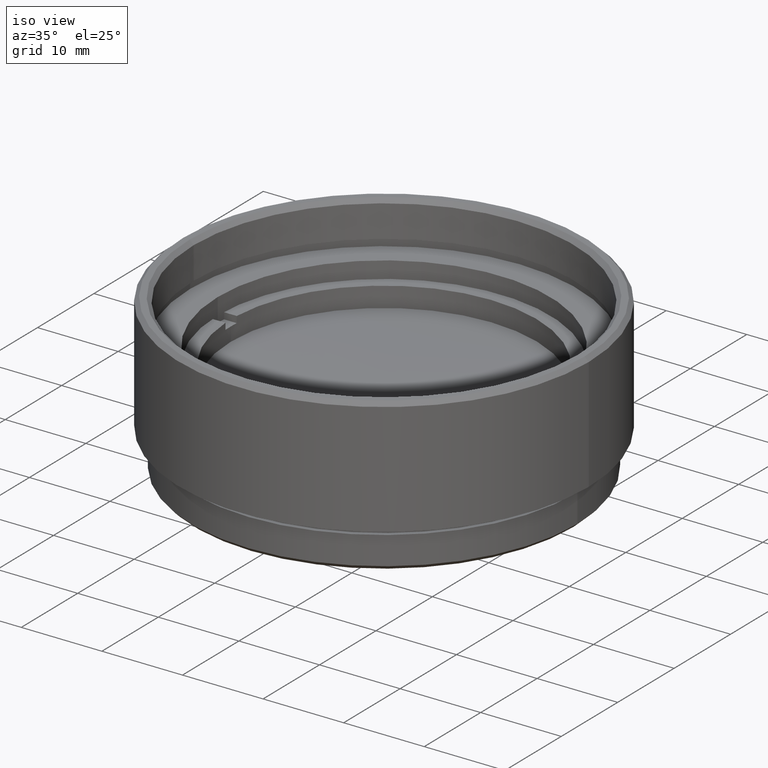
[diagram: clean part render]
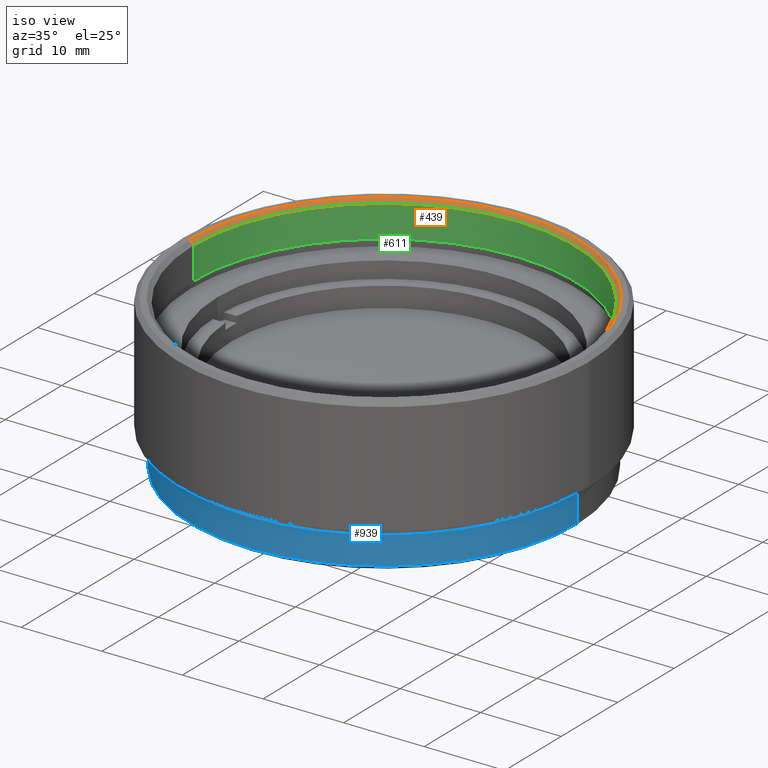
[diagram: same view with three faces highlighted in distinct colors, each labeled with its STEP entity id]
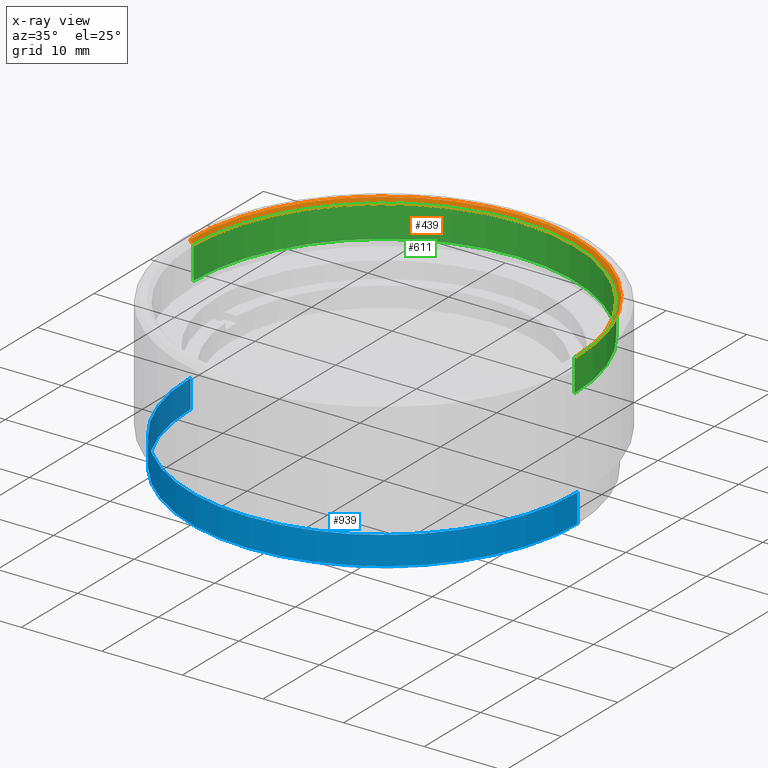
[diagram: x-ray of the same camera — body ghosted, the three highlighted faces saturated]
A machine part, iso view with three faces highlighted in distinct colors.
The next image is the same camera in x-ray (body ghosted, the three faces saturated) — at least one of them is partly hidden behind the body in this view.
Their STEP definitions:

[orange] entity #439 — the highlighted conical surface has half-angle 45 deg.
#53 = CARTESIAN_POINT ( 'NONE',  ( 0.000000000000000000, 0.000000000000000000, 18.99999999999999289 ) ) ;
#73 = DIRECTION ( 'NONE',  ( -0.000000000000000000, -0.000000000000000000, -1.000000000000000000 ) ) ;
#200 = VECTOR ( 'NONE', #297, 999.9999999999998863 ) ;
#203 = VERTEX_POINT ( 'NONE', #233 ) ;
#229 = DIRECTION ( 'NONE',  ( 0.000000000000000000, 0.000000000000000000, 1.000000000000000000 ) ) ;
#233 = CARTESIAN_POINT ( 'NONE',  ( 23.62500000000000000, 0.000000000000000000, 18.99999999999999289 ) ) ;
#277 = EDGE_CURVE ( 'NONE', #442, #476, #902, .T. ) ;
#286 = LINE ( 'NONE', #606, #1490 ) ;
#297 = DIRECTION ( 'NONE',  ( -0.7071067811865574537, 8.659560562355054885E-17, 0.7071067811865376918 ) ) ;
#314 = DIRECTION ( 'NONE',  ( 0.7071067811865574537, 0.000000000000000000, 0.7071067811865376918 ) ) ;
#351 = CARTESIAN_POINT ( 'NONE',  ( 0.000000000000000000, 0.000000000000000000, 19.50000000000000000 ) ) ;
#401 = FACE_OUTER_BOUND ( 'NONE', #1420, .T. ) ;
#439 = ADVANCED_FACE ( 'NONE', ( #401 ), #1762, .F. ) ;
#442 = VERTEX_POINT ( 'NONE', #551 ) ;
#476 = VERTEX_POINT ( 'NONE', #1451 ) ;
#500 = ORIENTED_EDGE ( 'NONE', *, *, #1662, .F. ) ;
#551 = CARTESIAN_POINT ( 'NONE',  ( -24.12500000000002132, 2.954460402942992155E-15, 19.50000000000000000 ) ) ;
#576 = CARTESIAN_POINT ( 'NONE',  ( 0.000000000000000000, 0.000000000000000000, 18.99999999999999289 ) ) ;
#606 = CARTESIAN_POINT ( 'NONE',  ( 23.62500000000000000, 0.000000000000000000, 18.99999999999999289 ) ) ;
#663 = DIRECTION ( 'NONE',  ( 1.000000000000000000, 0.000000000000000000, 0.000000000000000000 ) ) ;
#775 = EDGE_CURVE ( 'NONE', #203, #476, #286, .T. ) ;
#818 = ORIENTED_EDGE ( 'NONE', *, *, #277, .F. ) ;
#820 = EDGE_CURVE ( 'NONE', #1217, #442, #1644, .T. ) ;
#856 = DIRECTION ( 'NONE',  ( 0.000000000000000000, 0.000000000000000000, 1.000000000000000000 ) ) ;
#902 = CIRCLE ( 'NONE', #1456, 24.12500000000002132 ) ;
#943 = DIRECTION ( 'NONE',  ( 1.000000000000000000, 0.000000000000000000, 0.000000000000000000 ) ) ;
#1064 = AXIS2_PLACEMENT_3D ( 'NONE', #53, #229, #663 ) ;
#1142 = DIRECTION ( 'NONE',  ( 1.000000000000000000, 0.000000000000000000, 0.000000000000000000 ) ) ;
#1155 = CIRCLE ( 'NONE', #1064, 23.62500000000000000 ) ;
#1164 = CARTESIAN_POINT ( 'NONE',  ( -23.62500000000000000, 2.893228062985622214E-15, 18.99999999999999289 ) ) ;
#1166 = ORIENTED_EDGE ( 'NONE', *, *, #820, .F. ) ;
#1217 = VERTEX_POINT ( 'NONE', #1164 ) ;
#1420 = EDGE_LOOP ( 'NONE', ( #1166, #500, #1671, #818 ) ) ;
#1451 = CARTESIAN_POINT ( 'NONE',  ( 24.12500000000002132, 0.000000000000000000, 19.50000000000000000 ) ) ;
#1456 = AXIS2_PLACEMENT_3D ( 'NONE', #351, #73, #943 ) ;
#1490 = VECTOR ( 'NONE', #314, 999.9999999999998863 ) ;
#1644 = LINE ( 'NONE', #1799, #200 ) ;
#1662 = EDGE_CURVE ( 'NONE', #203, #1217, #1155, .T. ) ;
#1671 = ORIENTED_EDGE ( 'NONE', *, *, #775, .T. ) ;
#1762 = CONICAL_SURFACE ( 'NONE', #1859, 23.62500000000000000, 0.7853981633974621568 ) ;
#1799 = CARTESIAN_POINT ( 'NONE',  ( -23.62500000000000000, 2.893228062985622214E-15, 18.99999999999999289 ) ) ;
#1859 = AXIS2_PLACEMENT_3D ( 'NONE', #576, #856, #1142 ) ;

[blue] entity #939 — the highlighted cylindrical surface (partial cylindrical patch) has radius 24 mm, axis along (-0, -0, -1).
#18 = AXIS2_PLACEMENT_3D ( 'NONE', #1295, #1165, #1308 ) ;
#120 = DIRECTION ( 'NONE',  ( 1.000000000000000000, 0.000000000000000000, 0.000000000000000000 ) ) ;
#138 = LINE ( 'NONE', #1758, #908 ) ;
#238 = DIRECTION ( 'NONE',  ( 0.000000000000000000, 0.000000000000000000, 1.000000000000000000 ) ) ;
#244 = ORIENTED_EDGE ( 'NONE', *, *, #905, .T. ) ;
#419 = CIRCLE ( 'NONE', #659, 24.00000000000000355 ) ;
#568 = ORIENTED_EDGE ( 'NONE', *, *, #1780, .T. ) ;
#628 = VERTEX_POINT ( 'NONE', #1485 ) ;
#634 = CARTESIAN_POINT ( 'NONE',  ( 0.000000000000000000, 0.000000000000000000, 5.000000000000000000 ) ) ;
#653 = FACE_OUTER_BOUND ( 'NONE', #1700, .T. ) ;
#659 = AXIS2_PLACEMENT_3D ( 'NONE', #1447, #238, #120 ) ;
#742 = VERTEX_POINT ( 'NONE', #1024 ) ;
#778 = ORIENTED_EDGE ( 'NONE', *, *, #1239, .T. ) ;
#843 = EDGE_CURVE ( 'NONE', #1177, #628, #138, .T. ) ;
#860 = CARTESIAN_POINT ( 'NONE',  ( -24.00000000000000355, 0.000000000000000000, 4.000000000000000000 ) ) ;
#878 = DIRECTION ( 'NONE',  ( -0.000000000000000000, -0.000000000000000000, -1.000000000000000000 ) ) ;
#905 = EDGE_CURVE ( 'NONE', #1348, #742, #959, .T. ) ;
#908 = VECTOR ( 'NONE', #878, 1000.000000000000000 ) ;
#939 = ADVANCED_FACE ( 'NONE', ( #653 ), #1679, .T. ) ;
#959 = LINE ( 'NONE', #1512, #1377 ) ;
#1024 = CARTESIAN_POINT ( 'NONE',  ( -24.00000000000000355, 0.000000000000000000, 0.4999999999999935052 ) ) ;
#1165 = DIRECTION ( 'NONE',  ( 0.000000000000000000, 0.000000000000000000, -1.000000000000000000 ) ) ;
#1177 = VERTEX_POINT ( 'NONE', #1901 ) ;
#1239 = EDGE_CURVE ( 'NONE', #742, #628, #419, .T. ) ;
#1295 = CARTESIAN_POINT ( 'NONE',  ( 0.000000000000000000, 0.000000000000000000, 4.000000000000000000 ) ) ;
#1308 = DIRECTION ( 'NONE',  ( -1.000000000000000000, 0.000000000000000000, 0.000000000000000000 ) ) ;
#1309 = AXIS2_PLACEMENT_3D ( 'NONE', #634, #1381, #1406 ) ;
#1348 = VERTEX_POINT ( 'NONE', #860 ) ;
#1377 = VECTOR ( 'NONE', #1838, 1000.000000000000000 ) ;
#1381 = DIRECTION ( 'NONE',  ( -0.000000000000000000, -0.000000000000000000, -1.000000000000000000 ) ) ;
#1401 = ORIENTED_EDGE ( 'NONE', *, *, #843, .F. ) ;
#1406 = DIRECTION ( 'NONE',  ( -1.000000000000000000, 0.000000000000000000, 0.000000000000000000 ) ) ;
#1447 = CARTESIAN_POINT ( 'NONE',  ( 0.000000000000000000, 0.000000000000000000, 0.4999999999999935052 ) ) ;
#1485 = CARTESIAN_POINT ( 'NONE',  ( 24.00000000000000355, 2.939152317953648289E-15, 0.4999999999999935052 ) ) ;
#1512 = CARTESIAN_POINT ( 'NONE',  ( -24.00000000000000355, 0.000000000000000000, 5.000000000000000000 ) ) ;
#1679 = CYLINDRICAL_SURFACE ( 'NONE', #1309, 24.00000000000000355 ) ;
#1700 = EDGE_LOOP ( 'NONE', ( #1401, #568, #244, #778 ) ) ;
#1742 = CIRCLE ( 'NONE', #18, 24.00000000000000355 ) ;
#1758 = CARTESIAN_POINT ( 'NONE',  ( 24.00000000000000355, 2.939152317953648289E-15, 5.000000000000000000 ) ) ;
#1780 = EDGE_CURVE ( 'NONE', #1177, #1348, #1742, .T. ) ;
#1838 = DIRECTION ( 'NONE',  ( -0.000000000000000000, -0.000000000000000000, -1.000000000000000000 ) ) ;
#1901 = CARTESIAN_POINT ( 'NONE',  ( 24.00000000000000355, 2.939152317953648289E-15, 4.000000000000000000 ) ) ;

[green] entity #611 — the highlighted cylindrical surface (partial cylindrical patch) has radius 23.625 mm, axis along (0, 0, 1).
#12 = VECTOR ( 'NONE', #753, 1000.000000000000000 ) ;
#45 = EDGE_CURVE ( 'NONE', #1436, #203, #1029, .T. ) ;
#46 = FACE_OUTER_BOUND ( 'NONE', #1510, .T. ) ;
#48 = CARTESIAN_POINT ( 'NONE',  ( -23.62500000000000000, 2.893228062985622214E-15, 14.00000000000000000 ) ) ;
#53 = CARTESIAN_POINT ( 'NONE',  ( 0.000000000000000000, 0.000000000000000000, 18.99999999999999289 ) ) ;
#131 = EDGE_CURVE ( 'NONE', #1169, #1217, #1507, .T. ) ;
#203 = VERTEX_POINT ( 'NONE', #233 ) ;
#229 = DIRECTION ( 'NONE',  ( 0.000000000000000000, 0.000000000000000000, 1.000000000000000000 ) ) ;
#233 = CARTESIAN_POINT ( 'NONE',  ( 23.62500000000000000, 0.000000000000000000, 18.99999999999999289 ) ) ;
#309 = CARTESIAN_POINT ( 'NONE',  ( 23.62500000000000000, 0.000000000000000000, 14.00000000000000000 ) ) ;
#317 = CYLINDRICAL_SURFACE ( 'NONE', #1763, 23.62500000000000000 ) ;
#347 = VECTOR ( 'NONE', #1059, 1000.000000000000000 ) ;
#382 = ORIENTED_EDGE ( 'NONE', *, *, #131, .F. ) ;
#393 = ORIENTED_EDGE ( 'NONE', *, *, #1662, .T. ) ;
#409 = ORIENTED_EDGE ( 'NONE', *, *, #45, .T. ) ;
#511 = CIRCLE ( 'NONE', #1861, 23.62500000000000000 ) ;
#600 = ORIENTED_EDGE ( 'NONE', *, *, #715, .T. ) ;
#611 = ADVANCED_FACE ( 'NONE', ( #46 ), #317, .F. ) ;
#663 = DIRECTION ( 'NONE',  ( 1.000000000000000000, 0.000000000000000000, 0.000000000000000000 ) ) ;
#715 = EDGE_CURVE ( 'NONE', #1169, #1436, #511, .T. ) ;
#722 = CARTESIAN_POINT ( 'NONE',  ( -23.62500000000000000, 2.893228062985622214E-15, 15.00000000000000000 ) ) ;
#738 = DIRECTION ( 'NONE',  ( 1.000000000000000000, 0.000000000000000000, 0.000000000000000000 ) ) ;
#753 = DIRECTION ( 'NONE',  ( -0.000000000000000000, -0.000000000000000000, 1.000000000000000000 ) ) ;
#759 = DIRECTION ( 'NONE',  ( -0.000000000000000000, -0.000000000000000000, 1.000000000000000000 ) ) ;
#769 = DIRECTION ( 'NONE',  ( 1.000000000000000000, 0.000000000000000000, 0.000000000000000000 ) ) ;
#913 = CARTESIAN_POINT ( 'NONE',  ( 0.000000000000000000, 0.000000000000000000, 15.00000000000000000 ) ) ;
#1029 = LINE ( 'NONE', #309, #347 ) ;
#1059 = DIRECTION ( 'NONE',  ( -0.000000000000000000, -0.000000000000000000, 1.000000000000000000 ) ) ;
#1061 = CARTESIAN_POINT ( 'NONE',  ( 23.62500000000000000, 0.000000000000000000, 15.00000000000000000 ) ) ;
#1064 = AXIS2_PLACEMENT_3D ( 'NONE', #53, #229, #663 ) ;
#1155 = CIRCLE ( 'NONE', #1064, 23.62500000000000000 ) ;
#1164 = CARTESIAN_POINT ( 'NONE',  ( -23.62500000000000000, 2.893228062985622214E-15, 18.99999999999999289 ) ) ;
#1169 = VERTEX_POINT ( 'NONE', #722 ) ;
#1183 = CARTESIAN_POINT ( 'NONE',  ( 0.000000000000000000, 0.000000000000000000, 14.00000000000000000 ) ) ;
#1217 = VERTEX_POINT ( 'NONE', #1164 ) ;
#1436 = VERTEX_POINT ( 'NONE', #1061 ) ;
#1507 = LINE ( 'NONE', #48, #12 ) ;
#1510 = EDGE_LOOP ( 'NONE', ( #382, #600, #409, #393 ) ) ;
#1662 = EDGE_CURVE ( 'NONE', #203, #1217, #1155, .T. ) ;
#1763 = AXIS2_PLACEMENT_3D ( 'NONE', #1183, #759, #738 ) ;
#1771 = DIRECTION ( 'NONE',  ( -0.000000000000000000, -0.000000000000000000, -1.000000000000000000 ) ) ;
#1861 = AXIS2_PLACEMENT_3D ( 'NONE', #913, #1771, #769 ) ;